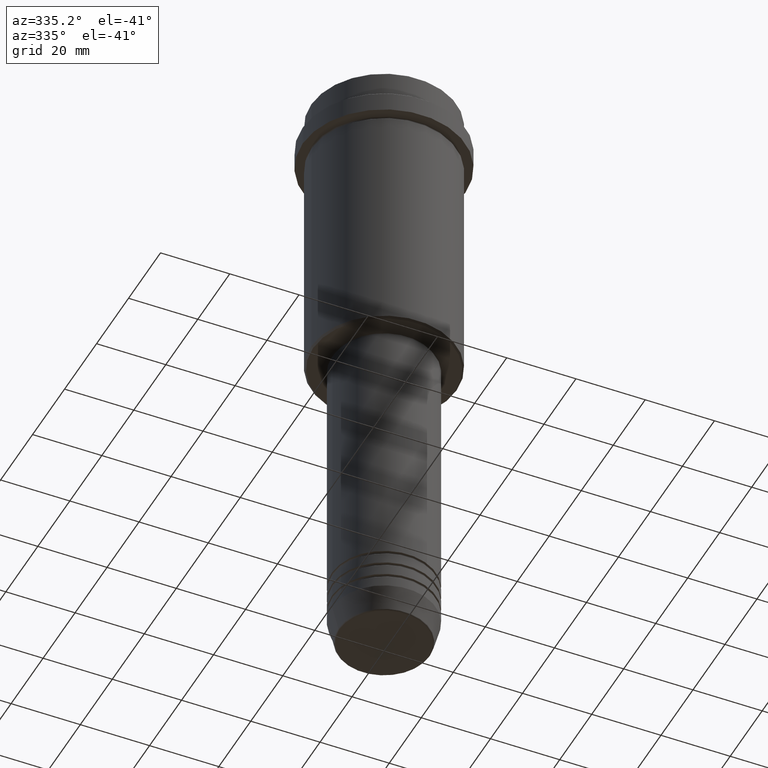
[diagram: clean part render]
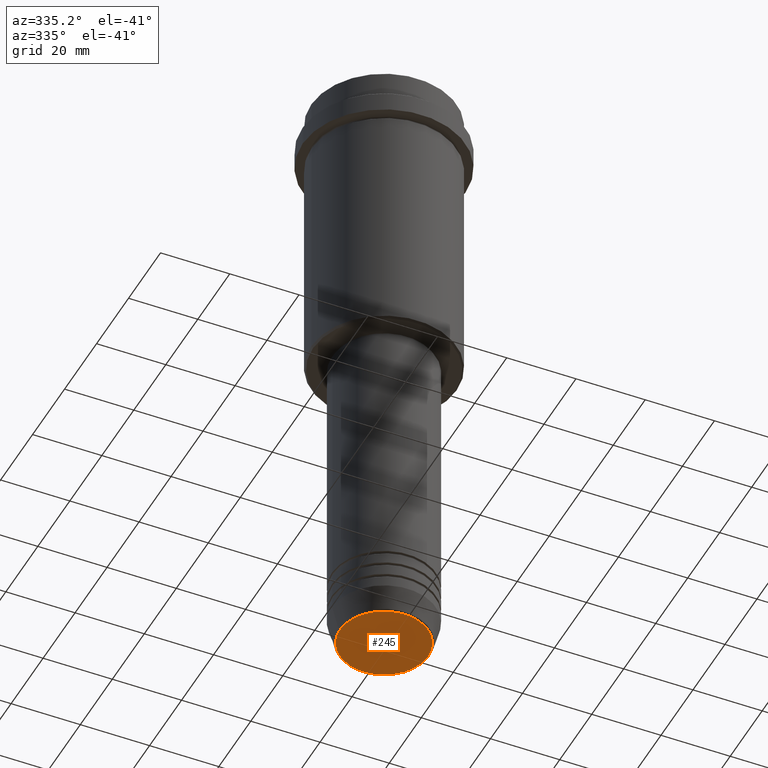
[diagram: same view with one face highlighted and labeled with its STEP entity id]
A machine part, auxiliary view. The second image highlights one B-rep face of the part: STEP entity #245.
In plain terms, the highlighted planar face has unit normal (0, -0, 1).
Its self-contained STEP definition (entity closure, byte-faithful):
#1 = CARTESIAN_POINT ( 'NONE',  ( -12.74069215899265828, 1.589857736427681035E-15, -180.0000000000000000 ) ) ;
#24 = DIRECTION ( 'NONE',  ( 1.000000000000000000, 0.000000000000000000, 0.000000000000000000 ) ) ;
#33 = DIRECTION ( 'NONE',  ( 1.000000000000000000, 0.000000000000000000, 0.000000000000000000 ) ) ;
#44 = CARTESIAN_POINT ( 'NONE',  ( 0.000000000000000000, 0.000000000000000000, -180.0000000000000000 ) ) ;
#51 = VERTEX_POINT ( 'NONE', #128 ) ;
#128 = CARTESIAN_POINT ( 'NONE',  ( 12.74069215899265828, 0.000000000000000000, -180.0000000000000000 ) ) ;
#131 = CARTESIAN_POINT ( 'NONE',  ( 0.000000000000000000, 0.000000000000000000, -180.0000000000000000 ) ) ;
#245 = ADVANCED_FACE ( 'NONE', ( #1338 ), #360, .F. ) ;
#360 = PLANE ( 'NONE',  #1206 ) ;
#393 = EDGE_LOOP ( 'NONE', ( #1385, #509 ) ) ;
#419 = DIRECTION ( 'NONE',  ( 1.000000000000000000, 0.000000000000000000, 0.000000000000000000 ) ) ;
#444 = CARTESIAN_POINT ( 'NONE',  ( 0.000000000000000000, 0.000000000000000000, -180.0000000000000000 ) ) ;
#472 = CIRCLE ( 'NONE', #1148, 12.74069215899265828 ) ;
#504 = EDGE_CURVE ( 'NONE', #917, #51, #1280, .T. ) ;
#509 = ORIENTED_EDGE ( 'NONE', *, *, #504, .T. ) ;
#596 = EDGE_CURVE ( 'NONE', #51, #917, #472, .T. ) ;
#675 = AXIS2_PLACEMENT_3D ( 'NONE', #444, #765, #419 ) ;
#765 = DIRECTION ( 'NONE',  ( 0.000000000000000000, 0.000000000000000000, -1.000000000000000000 ) ) ;
#917 = VERTEX_POINT ( 'NONE', #1 ) ;
#1102 = DIRECTION ( 'NONE',  ( 0.000000000000000000, 0.000000000000000000, -1.000000000000000000 ) ) ;
#1148 = AXIS2_PLACEMENT_3D ( 'NONE', #131, #1102, #24 ) ;
#1206 = AXIS2_PLACEMENT_3D ( 'NONE', #44, #1213, #33 ) ;
#1213 = DIRECTION ( 'NONE',  ( 0.000000000000000000, -0.000000000000000000, 1.000000000000000000 ) ) ;
#1280 = CIRCLE ( 'NONE', #675, 12.74069215899265828 ) ;
#1338 = FACE_OUTER_BOUND ( 'NONE', #393, .T. ) ;
#1385 = ORIENTED_EDGE ( 'NONE', *, *, #596, .T. ) ;